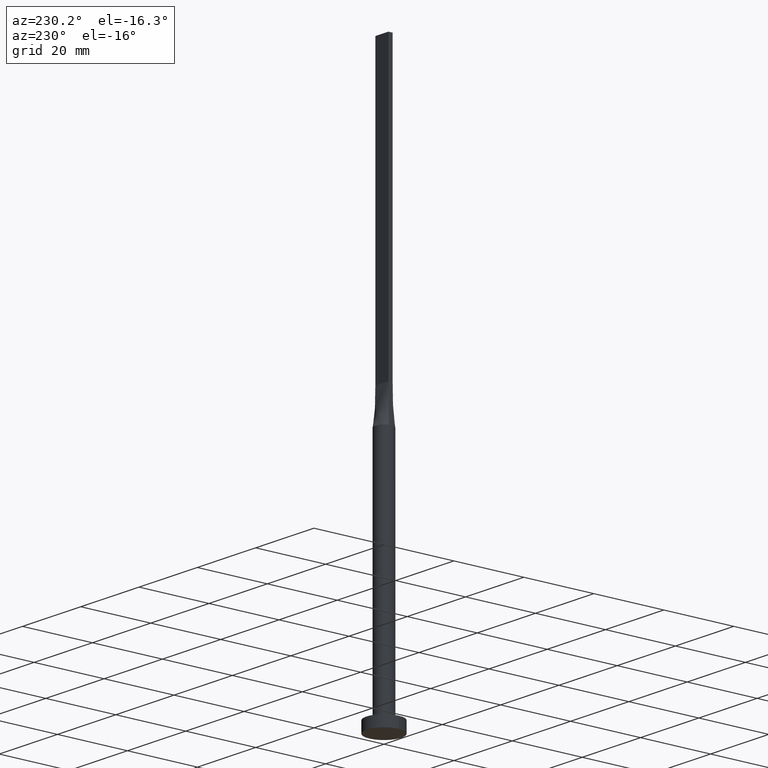
[diagram: clean part render]
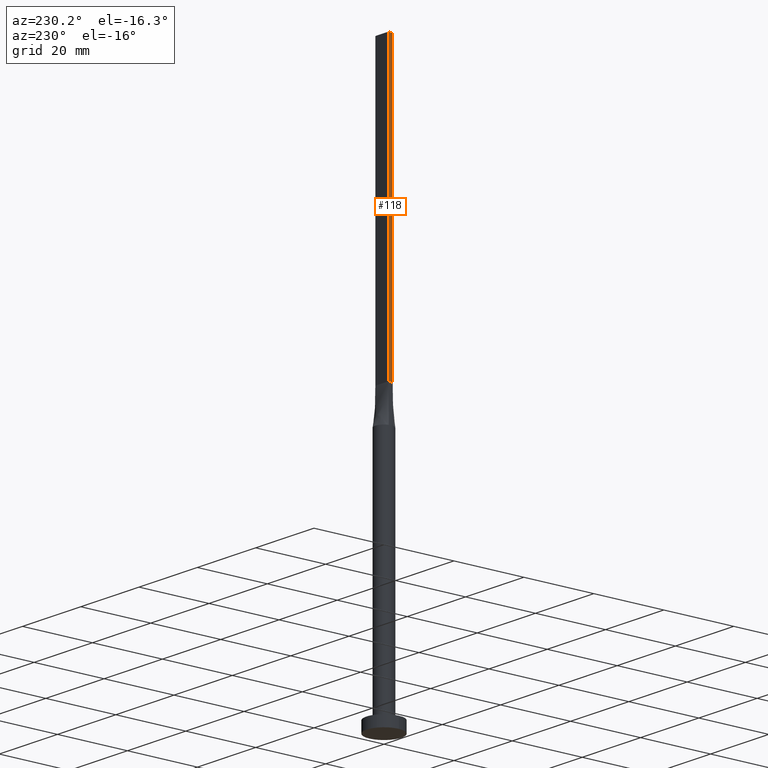
[diagram: same view with one face highlighted and labeled with its STEP entity id]
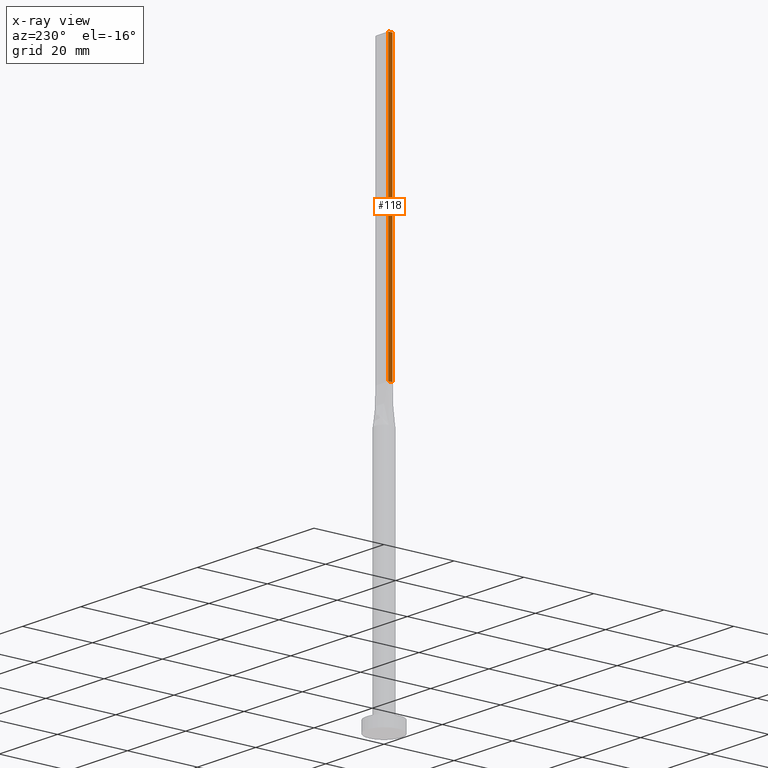
[diagram: x-ray of the same camera — body ghosted, the highlighted face saturated]
A machine part, auxiliary view. The second image highlights one B-rep face of the part: STEP entity #118.
The next image is the same camera in x-ray: the body ghosted, the highlighted face saturated — about 0% of this face is hidden behind the body in this view.
In plain terms, the highlighted planar face has unit normal (1, -0, 0).
Its self-contained STEP definition (entity closure, byte-faithful):
#9 = LINE ( 'NONE', #49, #316 ) ;
#28 = EDGE_CURVE ( 'NONE', #492, #93, #465, .T. ) ;
#29 = ORIENTED_EDGE ( 'NONE', *, *, #28, .F. ) ;
#35 = EDGE_CURVE ( 'NONE', #93, #501, #558, .T. ) ;
#49 = CARTESIAN_POINT ( 'NONE',  ( -2.249999999999999556, 0.6000000000000001998, 160.0000000000000000 ) ) ;
#60 = CARTESIAN_POINT ( 'NONE',  ( -2.249999999999999556, 0.6000000000000001998, 160.0000000000000000 ) ) ;
#61 = CARTESIAN_POINT ( 'NONE',  ( -2.249999999999999556, 0.6000000000000001998, 80.00000000000000000 ) ) ;
#69 = CARTESIAN_POINT ( 'NONE',  ( -2.250000000000000000, -0.5999999999999994227, 160.0000000000000000 ) ) ;
#71 = DIRECTION ( 'NONE',  ( 3.614007241618349264E-16, 1.000000000000000000, 0.000000000000000000 ) ) ;
#92 = EDGE_CURVE ( 'NONE', #485, #501, #340, .T. ) ;
#93 = VERTEX_POINT ( 'NONE', #69 ) ;
#113 = DIRECTION ( 'NONE',  ( -3.614007241618349264E-16, -1.000000000000000000, 0.000000000000000000 ) ) ;
#118 = ADVANCED_FACE ( 'NONE', ( #463 ), #150, .F. ) ;
#129 = ORIENTED_EDGE ( 'NONE', *, *, #323, .T. ) ;
#146 = ORIENTED_EDGE ( 'NONE', *, *, #35, .F. ) ;
#150 = PLANE ( 'NONE',  #467 ) ;
#209 = CARTESIAN_POINT ( 'NONE',  ( -2.249999999999999556, 0.6000000000000001998, 80.00000000000000000 ) ) ;
#224 = VECTOR ( 'NONE', #423, 1000.000000000000000 ) ;
#244 = DIRECTION ( 'NONE',  ( 1.000000000000000000, -3.614007241618349264E-16, 0.000000000000000000 ) ) ;
#248 = CARTESIAN_POINT ( 'NONE',  ( -2.250000000000000000, -0.5999999999999994227, 160.0000000000000000 ) ) ;
#305 = VECTOR ( 'NONE', #473, 1000.000000000000000 ) ;
#309 = CARTESIAN_POINT ( 'NONE',  ( -2.250000000000000000, -0.5999999999999994227, 80.00000000000000000 ) ) ;
#316 = VECTOR ( 'NONE', #459, 1000.000000000000000 ) ;
#323 = EDGE_CURVE ( 'NONE', #492, #485, #9, .T. ) ;
#340 = LINE ( 'NONE', #209, #378 ) ;
#378 = VECTOR ( 'NONE', #113, 1000.000000000000000 ) ;
#423 = DIRECTION ( 'NONE',  ( -3.614007241618349264E-16, -1.000000000000000000, 0.000000000000000000 ) ) ;
#446 = EDGE_LOOP ( 'NONE', ( #541, #146, #29, #129 ) ) ;
#459 = DIRECTION ( 'NONE',  ( -0.000000000000000000, -0.000000000000000000, -1.000000000000000000 ) ) ;
#463 = FACE_OUTER_BOUND ( 'NONE', #446, .T. ) ;
#465 = LINE ( 'NONE', #469, #224 ) ;
#467 = AXIS2_PLACEMENT_3D ( 'NONE', #60, #244, #71 ) ;
#468 = CARTESIAN_POINT ( 'NONE',  ( -2.249999999999999556, 0.6000000000000001998, 160.0000000000000000 ) ) ;
#469 = CARTESIAN_POINT ( 'NONE',  ( -2.249999999999999556, 0.6000000000000001998, 160.0000000000000000 ) ) ;
#473 = DIRECTION ( 'NONE',  ( -0.000000000000000000, -0.000000000000000000, -1.000000000000000000 ) ) ;
#485 = VERTEX_POINT ( 'NONE', #61 ) ;
#492 = VERTEX_POINT ( 'NONE', #468 ) ;
#501 = VERTEX_POINT ( 'NONE', #309 ) ;
#541 = ORIENTED_EDGE ( 'NONE', *, *, #92, .T. ) ;
#558 = LINE ( 'NONE', #248, #305 ) ;